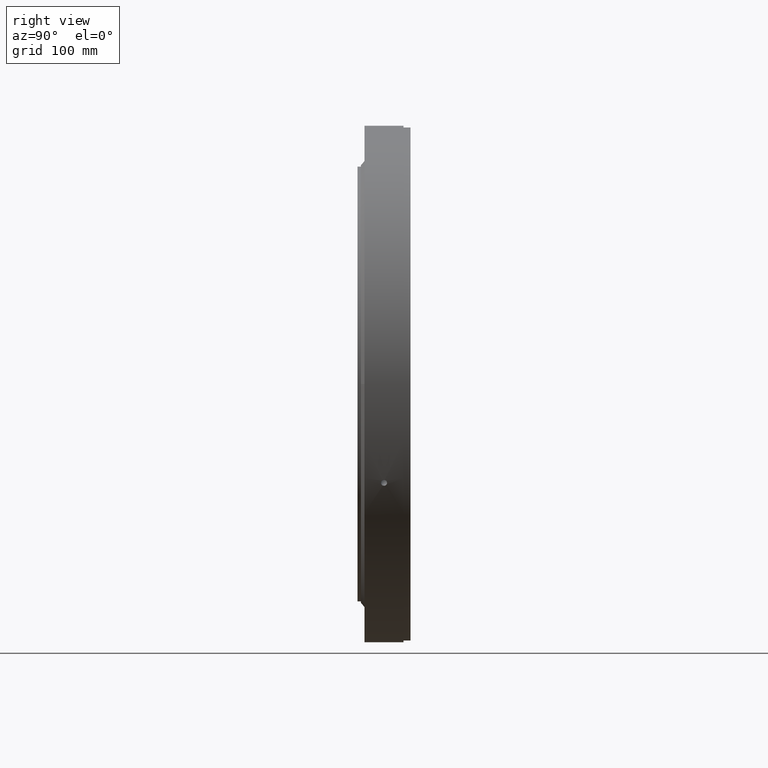
[diagram: clean part render]
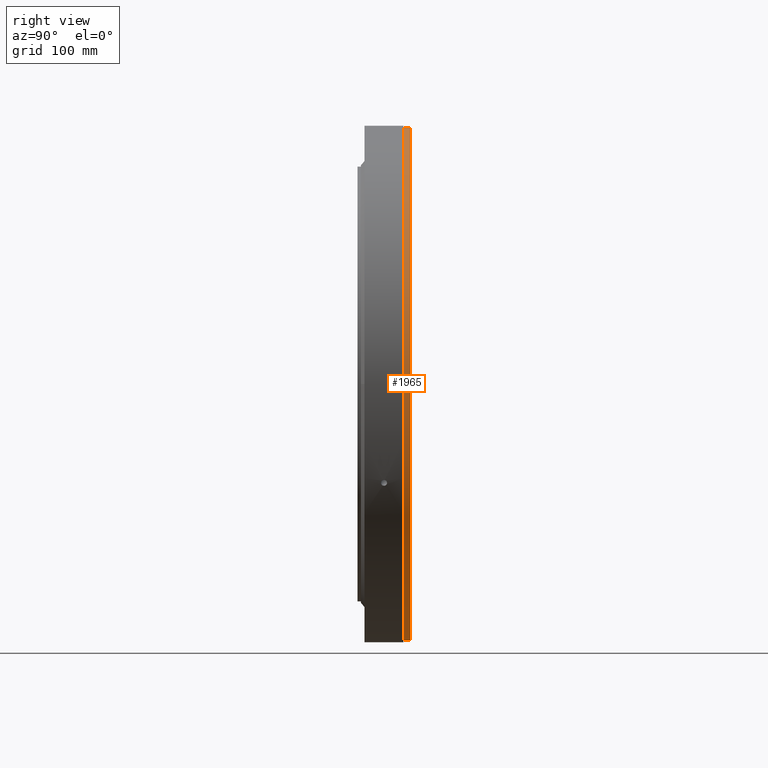
[diagram: same view with one face highlighted and labeled with its STEP entity id]
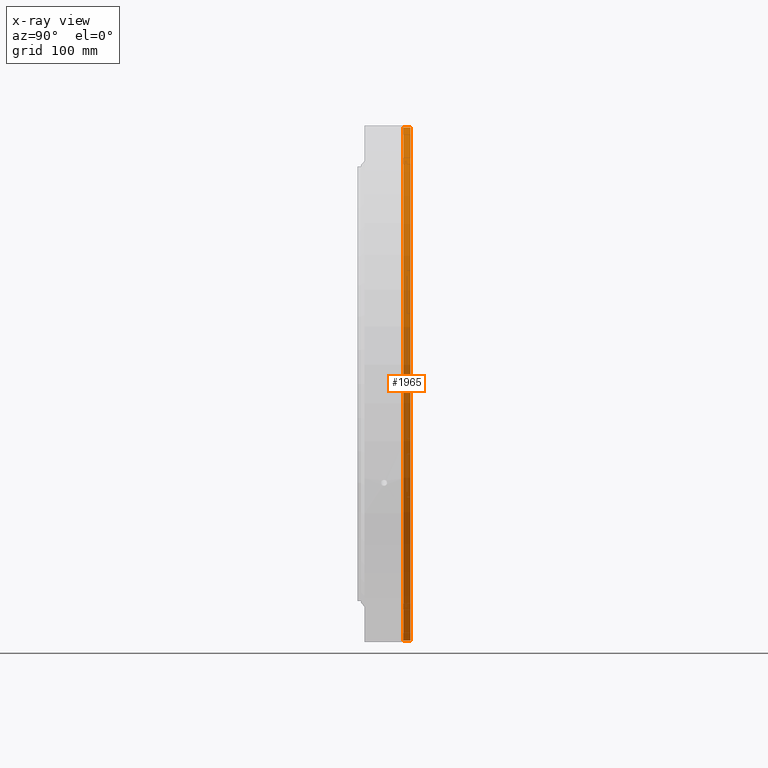
[diagram: x-ray of the same camera — body ghosted, the highlighted face saturated]
A machine part, right view. The second image highlights one B-rep face of the part: STEP entity #1965.
The next image is the same camera in x-ray: the body ghosted, the highlighted face saturated — about 0% of this face is hidden behind the body in this view.
In plain terms, the highlighted cylindrical surface (partial cylindrical patch) has radius 367.5 mm, axis along (0, -1, -0).
Its self-contained STEP definition (entity closure, byte-faithful):
#429 = CIRCLE ( 'NONE', #5366, 367.5000000000000600 ) ;
#440 = CARTESIAN_POINT ( 'NONE',  ( -5.823370619500226000E-014, -61.10955710955705900, -367.5000000000000600 ) ) ;
#497 = DIRECTION ( 'NONE',  ( 1.173697223544192200E-016, -1.000000000000000000, -8.822830751849692900E-017 ) ) ;
#1184 = CARTESIAN_POINT ( 'NONE',  ( 7.172411751150241800E-015, -61.10955710955709500, -8.647884843640776400E-015 ) ) ;
#1965 = ADVANCED_FACE ( 'NONE', ( #20184 ), #20053, .T. ) ;
#2068 = LINE ( 'NONE', #440, #21108 ) ;
#4417 = CARTESIAN_POINT ( 'NONE',  ( 2.757275982863749800E-014, -61.10955710955713000, 367.5000000000000600 ) ) ;
#4531 = DIRECTION ( 'NONE',  ( 1.173697223544192200E-016, -1.000000000000000000, -8.822830751849692900E-017 ) ) ;
#5168 = VERTEX_POINT ( 'NONE', #6287 ) ;
#5366 = AXIS2_PLACEMENT_3D ( 'NONE', #9718, #9680, #9738 ) ;
#5928 = CARTESIAN_POINT ( 'NONE',  ( -3.286352225923746100E-015, 28.00000000000006800, -7.858994361417024300E-016 ) ) ;
#5933 = DIRECTION ( 'NONE',  ( 1.173697223544192200E-016, -1.000000000000000000, -8.822830751849692900E-017 ) ) ;
#5962 = DIRECTION ( 'NONE',  ( 5.551115123125783900E-017, -8.496604780294563700E-017, 1.000000000000000000 ) ) ;
#6146 = AXIS2_PLACEMENT_3D ( 'NONE', #1184, #9856, #10235 ) ;
#6287 = CARTESIAN_POINT ( 'NONE',  ( 1.594029862801932000E-014, 38.00000000000003600, 367.5000000000000600 ) ) ;
#6779 = ORIENTED_EDGE ( 'NONE', *, *, #8555, .F. ) ;
#7133 = ORIENTED_EDGE ( 'NONE', *, *, #23097, .T. ) ;
#7315 = ORIENTED_EDGE ( 'NONE', *, *, #22377, .F. ) ;
#7341 = ORIENTED_EDGE ( 'NONE', *, *, #21083, .F. ) ;
#7661 = CARTESIAN_POINT ( 'NONE',  ( -6.927931878384833700E-014, 38.00000000000006400, -367.5000000000000600 ) ) ;
#7747 = CIRCLE ( 'NONE', #8833, 367.5000000000000600 ) ;
#8555 = EDGE_CURVE ( 'NONE', #16895, #10519, #7747, .T. ) ;
#8833 = AXIS2_PLACEMENT_3D ( 'NONE', #5928, #5933, #5962 ) ;
#9680 = DIRECTION ( 'NONE',  ( -1.173697223544192200E-016, 1.000000000000000000, 3.494217355385783800E-017 ) ) ;
#9718 = CARTESIAN_POINT ( 'NONE',  ( -4.460049449467935900E-015, 38.00000000000005000, 9.638363904326468500E-017 ) ) ;
#9738 = DIRECTION ( 'NONE',  ( 5.551115123125782700E-017, -3.776268791242028300E-017, 1.000000000000000000 ) ) ;
#9856 = DIRECTION ( 'NONE',  ( 1.173697223544192200E-016, -1.000000000000000000, -8.822830751849692900E-017 ) ) ;
#10037 = VERTEX_POINT ( 'NONE', #7661 ) ;
#10235 = DIRECTION ( 'NONE',  ( 5.551115123125783900E-017, -9.440671978105070800E-017, 1.000000000000000000 ) ) ;
#10519 = VERTEX_POINT ( 'NONE', #17764 ) ;
#14345 = EDGE_LOOP ( 'NONE', ( #7315, #7341, #7133, #6779 ) ) ;
#16895 = VERTEX_POINT ( 'NONE', #22805 ) ;
#17764 = CARTESIAN_POINT ( 'NONE',  ( 1.711399585156351400E-014, 28.00000000000003600, 367.5000000000000600 ) ) ;
#17907 = LINE ( 'NONE', #4417, #22931 ) ;
#20053 = CYLINDRICAL_SURFACE ( 'NONE', #6146, 367.5000000000000600 ) ;
#20184 = FACE_OUTER_BOUND ( 'NONE', #14345, .T. ) ;
#21083 = EDGE_CURVE ( 'NONE', #5168, #10037, #429, .T. ) ;
#21108 = VECTOR ( 'NONE', #497, 1000.000000000000000 ) ;
#22377 = EDGE_CURVE ( 'NONE', #10037, #16895, #2068, .T. ) ;
#22805 = CARTESIAN_POINT ( 'NONE',  ( -6.927931878384833700E-014, 28.00000000000009900, -367.5000000000000600 ) ) ;
#22931 = VECTOR ( 'NONE', #4531, 1000.000000000000000 ) ;
#23097 = EDGE_CURVE ( 'NONE', #5168, #10519, #17907, .T. ) ;